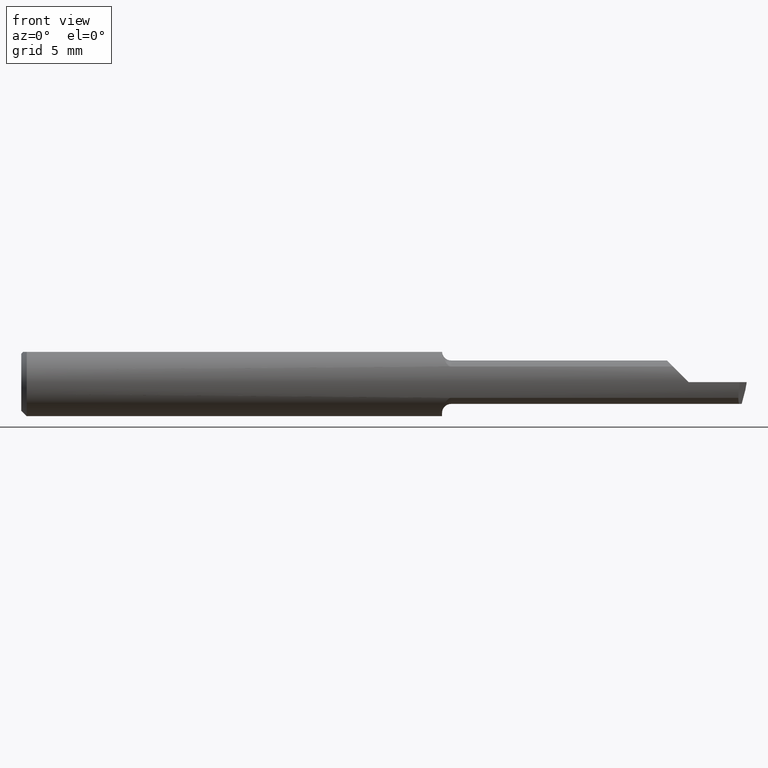
[diagram: clean part render]
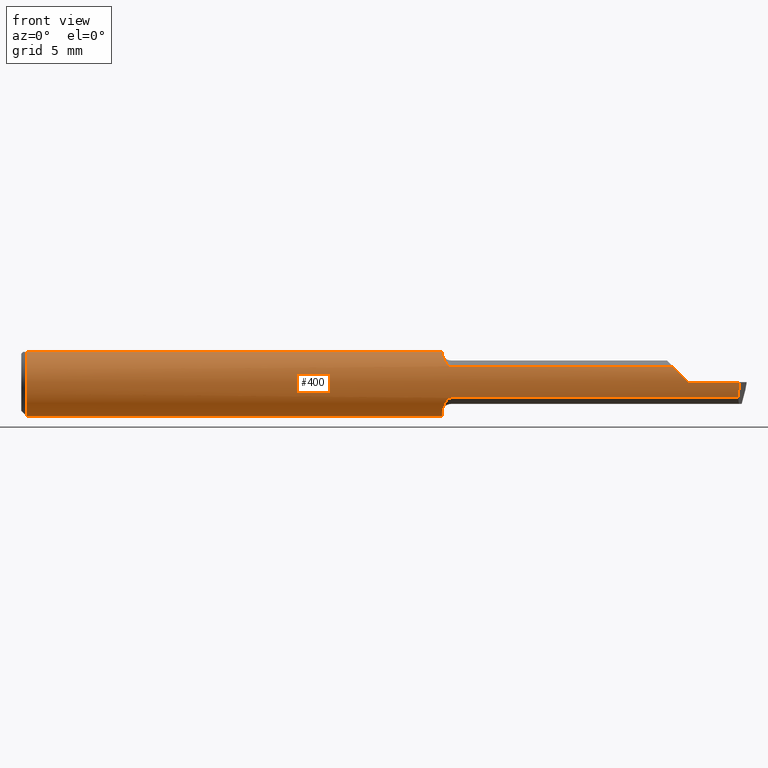
[diagram: same view with one face highlighted and labeled with its STEP entity id]
A machine part, front view. The second image highlights one B-rep face of the part: STEP entity #400.
In plain terms, the highlighted cylindrical surface (edge-blend (fillet) strip) has radius 2.3774 mm, axis along (-1, -0, -0).
Its self-contained STEP definition (entity closure, byte-faithful):
#1 = CARTESIAN_POINT ( 'NONE',  ( 1.520000000000000240, -0.08307469879518081246, 0.04312255117789283443 ) ) ;
#3 = VERTEX_POINT ( 'NONE', #586 ) ;
#5 = CARTESIAN_POINT ( 'NONE',  ( 1.840000000000000080, -0.09360000000000005815, 1.959434878635762025E-17 ) ) ;
#8 = CIRCLE ( 'NONE', #411, 0.09360000000000001652 ) ;
#10 = CIRCLE ( 'NONE', #177, 0.09360000000000001652 ) ;
#15 = CARTESIAN_POINT ( 'NONE',  ( 5.659797890829555466E-31, -0.09359999999999998876, 1.030335658007946046E-15 ) ) ;
#18 = CARTESIAN_POINT ( 'NONE',  ( 0.01499999999999999598, 0.04209513035969837669, 0.08360000000000000764 ) ) ;
#23 = AXIS2_PLACEMENT_3D ( 'NONE', #66, #492, #184 ) ;
#25 = DIRECTION ( 'NONE',  ( -1.000000000000000000, -0.000000000000000000, -0.000000000000000000 ) ) ;
#33 = CARTESIAN_POINT ( 'NONE',  ( 1.520000000000000240, -0.08307469879518081246, -0.04312255117789283443 ) ) ;
#39 = CARTESIAN_POINT ( 'NONE',  ( 1.976737781047570364, -0.08307469879518081246, -0.04312255117789283443 ) ) ;
#40 = DIRECTION ( 'NONE',  ( -1.000000000000000000, -0.000000000000000000, -0.000000000000000000 ) ) ;
#43 = CARTESIAN_POINT ( 'NONE',  ( 1.160000000000000142, -0.04014498638740782860, -0.08455714216888012003 ) ) ;
#45 = ORIENTED_EDGE ( 'NONE', *, *, #508, .F. ) ;
#49 = CARTESIAN_POINT ( 'NONE',  ( 1.175413575230843666, -0.08042664989327168168, 0.04791921015131045403 ) ) ;
#59 = ORIENTED_EDGE ( 'NONE', *, *, #63, .F. ) ;
#63 = EDGE_CURVE ( 'NONE', #535, #3, #353, .T. ) ;
#66 = CARTESIAN_POINT ( 'NONE',  ( 0.000000000000000000, 0.000000000000000000, 0.000000000000000000 ) ) ;
#70 = VERTEX_POINT ( 'NONE', #74 ) ;
#73 = EDGE_CURVE ( 'NONE', #421, #532, #521, .T. ) ;
#74 = CARTESIAN_POINT ( 'NONE',  ( 1.160033712670299977, -0.04209513036081732190, 0.08360000000000000764 ) ) ;
#76 = CYLINDRICAL_SURFACE ( 'NONE', #23, 0.09360000000000001652 ) ;
#88 = CARTESIAN_POINT ( 'NONE',  ( 1.167076397983111580, -0.07187891021191479546, -0.06019546731975692483 ) ) ;
#89 = CARTESIAN_POINT ( 'NONE',  ( 1.796877448822106649, -0.08307469879518082634, 0.04312255117789279973 ) ) ;
#91 = CARTESIAN_POINT ( 'NONE',  ( 1.182100790213033825, -0.08307469879518074307, -0.04312255117789293851 ) ) ;
#96 = EDGE_CURVE ( 'NONE', #132, #421, #356, .T. ) ;
#101 = CARTESIAN_POINT ( 'NONE',  ( 1.169277238843646760, -0.07518688180277835476, 0.05595855205935822835 ) ) ;
#102 = VERTEX_POINT ( 'NONE', #611 ) ;
#107 = EDGE_LOOP ( 'NONE', ( #59, #577, #166, #199, #671, #593, #255, #323, #368, #301, #580, #45, #570 ) ) ;
#113 = CARTESIAN_POINT ( 'NONE',  ( 1.160163936266329632, -0.04714148439379606259, 0.08105900800344767454 ) ) ;
#130 = B_SPLINE_CURVE_WITH_KNOTS ( 'NONE', 3,
 ( #360, #91, #154, #470, #461, #193, #88, #409, #666, #366, #669, #422 ),
 .UNSPECIFIED., .F., .F.,
 ( 4, 2, 2, 2, 2, 4 ),
 ( 1.963546462201886234E-07, 0.0002171101490734176048, 0.0004340239435006150535, 0.0008678515323550098966, 0.001301679121209404740, 0.001735506710063799583 ),
 .UNSPECIFIED. ) ;
#132 = VERTEX_POINT ( 'NONE', #601 ) ;
#136 =( BOUNDED_CURVE ( )  B_SPLINE_CURVE ( 3, ( #242, #591, #180, #547 ),
 .UNSPECIFIED., .F., .T. ) 
 B_SPLINE_CURVE_WITH_KNOTS ( ( 4, 4 ),
 ( 0.2441216721730426198, 0.7229178047250387484 ),
 .UNSPECIFIED. ) 
 CURVE ( )  GEOMETRIC_REPRESENTATION_ITEM ( )  RATIONAL_B_SPLINE_CURVE ( ( 1.000000000000000000, 0.9809872534005956712, 0.9809872534005956712, 1.000000000000000000 ) ) 
 REPRESENTATION_ITEM ( '' )  );
#137 = EDGE_CURVE ( 'NONE', #599, #437, #8, .T. ) ;
#150 = CARTESIAN_POINT ( 'NONE',  ( 0.01499999999999999598, 0.000000000000000000, 0.000000000000000000 ) ) ;
#153 = B_SPLINE_CURVE_WITH_KNOTS ( 'NONE', 3,
 ( #299, #305, #43, #252 ),
 .UNSPECIFIED., .F., .F.,
 ( 4, 4 ),
 ( 0.001735506710063799583, 0.001793010945052101509 ),
 .UNSPECIFIED. ) ;
#154 = CARTESIAN_POINT ( 'NONE',  ( 1.179498465877714120, -0.08233174416856384181, -0.04456779206614402966 ) ) ;
#166 = ORIENTED_EDGE ( 'NONE', *, *, #96, .T. ) ;
#177 = AXIS2_PLACEMENT_3D ( 'NONE', #335, #393, #648 ) ;
#180 = CARTESIAN_POINT ( 'NONE',  ( 1.978735214319866875, -0.09360000000000001652, -0.01508292493422504904 ) ) ;
#182 = EDGE_CURVE ( 'NONE', #70, #102, #417, .T. ) ;
#184 = DIRECTION ( 'NONE',  ( 0.000000000000000000, 0.000000000000000000, 1.000000000000000000 ) ) ;
#187 = LINE ( 'NONE', #292, #459 ) ;
#193 = CARTESIAN_POINT ( 'NONE',  ( 1.169237437666585722, -0.07513599091569005128, -0.05602756047418846336 ) ) ;
#199 = ORIENTED_EDGE ( 'NONE', *, *, #73, .T. ) ;
#207 = VERTEX_POINT ( 'NONE', #213 ) ;
#208 = CARTESIAN_POINT ( 'NONE',  ( 0.01499999999999999944, -0.04209513035969835587, 0.08360000000000000764 ) ) ;
#212 = VECTOR ( 'NONE', #533, 39.37007874015748143 ) ;
#213 = CARTESIAN_POINT ( 'NONE',  ( 1.160000000000000142, 0.04209513035969836975, 0.08360000000000000764 ) ) ;
#234 = EDGE_CURVE ( 'NONE', #371, #599, #662, .T. ) ;
#242 = CARTESIAN_POINT ( 'NONE',  ( 1.976737781047570364, -0.08307469879518081246, -0.04312255117789283443 ) ) ;
#248 = VECTOR ( 'NONE', #442, 39.37007874015748143 ) ;
#252 = CARTESIAN_POINT ( 'NONE',  ( 1.160000000000000142, -0.03946024096385560009, -0.08487549341873927566 ) ) ;
#255 = ORIENTED_EDGE ( 'NONE', *, *, #645, .T. ) ;
#257 = EDGE_CURVE ( 'NONE', #102, #532, #490, .T. ) ;
#284 = EDGE_CURVE ( 'NONE', #535, #132, #136, .T. ) ;
#292 = CARTESIAN_POINT ( 'NONE',  ( 0.000000000000000000, 0.04209513035969837669, 0.08360000000000000764 ) ) ;
#299 = CARTESIAN_POINT ( 'NONE',  ( 1.160020127471513174, -0.04150000000000000216, -0.08389702020930184245 ) ) ;
#301 = ORIENTED_EDGE ( 'NONE', *, *, #327, .T. ) ;
#305 = CARTESIAN_POINT ( 'NONE',  ( 1.160006719116742913, -0.04082489400077272262, -0.08423096411932438909 ) ) ;
#323 = ORIENTED_EDGE ( 'NONE', *, *, #137, .F. ) ;
#327 = EDGE_CURVE ( 'NONE', #371, #207, #187, .T. ) ;
#330 = VECTOR ( 'NONE', #560, 39.37007874015748143 ) ;
#331 = DIRECTION ( 'NONE',  ( -1.000000000000000000, -0.000000000000000000, -0.000000000000000000 ) ) ;
#335 = CARTESIAN_POINT ( 'NONE',  ( 1.160000000000000142, 0.000000000000000000, 0.000000000000000000 ) ) ;
#342 = VECTOR ( 'NONE', #25, 39.37007874015748143 ) ;
#353 = LINE ( 'NONE', #33, #342 ) ;
#356 = LINE ( 'NONE', #15, #330 ) ;
#359 = EDGE_CURVE ( 'NONE', #374, #207, #10, .T. ) ;
#360 = CARTESIAN_POINT ( 'NONE',  ( 1.185000000000000053, -0.08307469879518070144, -0.04312255117789289688 ) ) ;
#366 = CARTESIAN_POINT ( 'NONE',  ( 1.160604804002113077, -0.05145819953596708629, -0.07838465384289883264 ) ) ;
#368 = ORIENTED_EDGE ( 'NONE', *, *, #234, .F. ) ;
#370 = DIRECTION ( 'NONE',  ( 0.000000000000000000, 0.000000000000000000, 1.000000000000000000 ) ) ;
#371 = VERTEX_POINT ( 'NONE', #18 ) ;
#374 = VERTEX_POINT ( 'NONE', #495 ) ;
#375 = CARTESIAN_POINT ( 'NONE',  ( 0.01499999999999999598, 0.000000000000000000, -0.09360000000000001652 ) ) ;
#376 = AXIS2_PLACEMENT_3D ( 'NONE', #150, #331, #528 ) ;
#379 = CARTESIAN_POINT ( 'NONE',  ( 0.000000000000000000, -0.04209513035969835587, 0.08360000000000000764 ) ) ;
#386 = CARTESIAN_POINT ( 'NONE',  ( 1.160033712670299977, -0.04209513036081732190, 0.08360000000000000764 ) ) ;
#393 = DIRECTION ( 'NONE',  ( 1.000000000000000000, 0.000000000000000000, 0.000000000000000000 ) ) ;
#394 = VERTEX_POINT ( 'NONE', #507 ) ;
#400 = ADVANCED_FACE ( 'NONE', ( #544 ), #76, .T. ) ;
#409 = CARTESIAN_POINT ( 'NONE',  ( 1.163605992736884476, -0.06448586599545322318, -0.06805619079784644421 ) ) ;
#411 = AXIS2_PLACEMENT_3D ( 'NONE', #572, #40, #370 ) ;
#417 = B_SPLINE_CURVE_WITH_KNOTS ( 'NONE', 3,
 ( #386, #113, #677, #515, #424, #487, #101, #687, #49, #569, #428, #621 ),
 .UNSPECIFIED., .F., .F.,
 ( 4, 2, 2, 2, 2, 4 ),
 ( 4.385794399157352903E-07, 0.0004249653867977901621, 0.0008494921941556646131, 0.001274019001513539010, 0.001486282405192478756, 0.001698545808871418502 ),
 .UNSPECIFIED. ) ;
#418 = CARTESIAN_POINT ( 'NONE',  ( 1.840000000000000080, -0.09360000000000005815, 1.959434878635762025E-17 ) ) ;
#421 = VERTEX_POINT ( 'NONE', #5 ) ;
#422 = CARTESIAN_POINT ( 'NONE',  ( 1.160020127471513174, -0.04150000000000000216, -0.08389702020930184245 ) ) ;
#424 = CARTESIAN_POINT ( 'NONE',  ( 1.163721006865968688, -0.06478644025721981559, 0.06776242552087052839 ) ) ;
#427 = LINE ( 'NONE', #379, #212 ) ;
#428 = CARTESIAN_POINT ( 'NONE',  ( 1.182123707331576901, -0.08307469879541805324, 0.04312255117743588051 ) ) ;
#437 = VERTEX_POINT ( 'NONE', #208 ) ;
#442 = DIRECTION ( 'NONE',  ( 1.000000000000000000, 0.000000000000000000, 0.000000000000000000 ) ) ;
#450 = EDGE_CURVE ( 'NONE', #3, #394, #130, .T. ) ;
#459 = VECTOR ( 'NONE', #555, 39.37007874015748143 ) ;
#461 = CARTESIAN_POINT ( 'NONE',  ( 1.173672693420809487, -0.07917899622880043842, -0.04997532113045963925 ) ) ;
#470 = CARTESIAN_POINT ( 'NONE',  ( 1.175354605856553825, -0.08039319987159056213, -0.04797642756495511945 ) ) ;
#487 = CARTESIAN_POINT ( 'NONE',  ( 1.167169981118042932, -0.07201923175909119568, 0.06001882546754930964 ) ) ;
#490 = LINE ( 'NONE', #1, #248 ) ;
#492 = DIRECTION ( 'NONE',  ( -1.000000000000000000, -0.000000000000000000, -0.000000000000000000 ) ) ;
#495 = CARTESIAN_POINT ( 'NONE',  ( 1.160000000000000142, -0.03946024096385560009, -0.08487549341873927566 ) ) ;
#505 = CARTESIAN_POINT ( 'NONE',  ( 1.824917075065774830, -0.09360000000000001652, 0.01508292493422499526 ) ) ;
#507 = CARTESIAN_POINT ( 'NONE',  ( 1.160020127471513174, -0.04150000000000000216, -0.08389702020930184245 ) ) ;
#508 = EDGE_CURVE ( 'NONE', #394, #374, #153, .T. ) ;
#515 = CARTESIAN_POINT ( 'NONE',  ( 1.162429122971394557, -0.06066239981301110168, 0.07149394324226560071 ) ) ;
#519 = CARTESIAN_POINT ( 'NONE',  ( 1.796877448822106649, -0.08307469879518082634, 0.04312255117789279973 ) ) ;
#521 =( BOUNDED_CURVE ( )  B_SPLINE_CURVE ( 3, ( #418, #505, #562, #89 ),
 .UNSPECIFIED., .F., .T. ) 
 B_SPLINE_CURVE_WITH_KNOTS ( ( 4, 4 ),
 ( 4.712388980384689674, 5.191185112936686608 ),
 .UNSPECIFIED. ) 
 CURVE ( )  GEOMETRIC_REPRESENTATION_ITEM ( )  RATIONAL_B_SPLINE_CURVE ( ( 1.000000000000000000, 0.9809872534005956712, 0.9809872534005956712, 1.000000000000000000 ) ) 
 REPRESENTATION_ITEM ( '' )  );
#528 = DIRECTION ( 'NONE',  ( 0.000000000000000000, 0.000000000000000000, 1.000000000000000000 ) ) ;
#532 = VERTEX_POINT ( 'NONE', #519 ) ;
#533 = DIRECTION ( 'NONE',  ( -1.000000000000000000, -0.000000000000000000, -0.000000000000000000 ) ) ;
#535 = VERTEX_POINT ( 'NONE', #39 ) ;
#544 = FACE_OUTER_BOUND ( 'NONE', #107, .T. ) ;
#547 = CARTESIAN_POINT ( 'NONE',  ( 1.980605364811071301, -0.09360000000000009979, -5.798824549005809640E-17 ) ) ;
#555 = DIRECTION ( 'NONE',  ( 1.000000000000000000, 0.000000000000000000, 0.000000000000000000 ) ) ;
#560 = DIRECTION ( 'NONE',  ( -1.000000000000000000, -0.000000000000000000, -0.000000000000000000 ) ) ;
#562 = CARTESIAN_POINT ( 'NONE',  ( 1.810264301876177928, -0.09002356847881790025, 0.02973569812382162794 ) ) ;
#569 = CARTESIAN_POINT ( 'NONE',  ( 1.179521451227074413, -0.08233651528524262020, 0.04455777109846686956 ) ) ;
#570 = ORIENTED_EDGE ( 'NONE', *, *, #450, .F. ) ;
#572 = CARTESIAN_POINT ( 'NONE',  ( 0.01499999999999999598, 0.000000000000000000, 0.000000000000000000 ) ) ;
#577 = ORIENTED_EDGE ( 'NONE', *, *, #284, .T. ) ;
#580 = ORIENTED_EDGE ( 'NONE', *, *, #359, .F. ) ;
#586 = CARTESIAN_POINT ( 'NONE',  ( 1.185000000000000053, -0.08307469879518070144, -0.04312255117789289688 ) ) ;
#591 = CARTESIAN_POINT ( 'NONE',  ( 1.977421033545993856, -0.09002356847881790025, -0.02973569812382164529 ) ) ;
#593 = ORIENTED_EDGE ( 'NONE', *, *, #182, .F. ) ;
#599 = VERTEX_POINT ( 'NONE', #375 ) ;
#601 = CARTESIAN_POINT ( 'NONE',  ( 1.980605364811071301, -0.09360000000000009979, -5.798824549005809640E-17 ) ) ;
#611 = CARTESIAN_POINT ( 'NONE',  ( 1.185000000000000053, -0.08307469879518036837, 0.04312255117789319525 ) ) ;
#621 = CARTESIAN_POINT ( 'NONE',  ( 1.185000000000000053, -0.08307469879518036837, 0.04312255117789319525 ) ) ;
#645 = EDGE_CURVE ( 'NONE', #70, #437, #427, .T. ) ;
#648 = DIRECTION ( 'NONE',  ( 0.000000000000000000, 0.000000000000000000, -1.000000000000000000 ) ) ;
#662 = CIRCLE ( 'NONE', #376, 0.09360000000000001652 ) ;
#666 = CARTESIAN_POINT ( 'NONE',  ( 1.162355770679724287, -0.06040702343486030468, -0.07171535245186147489 ) ) ;
#669 = CARTESIAN_POINT ( 'NONE',  ( 1.160121283746728515, -0.04659318327468391085, -0.08137765652544186323 ) ) ;
#671 = ORIENTED_EDGE ( 'NONE', *, *, #257, .F. ) ;
#677 = CARTESIAN_POINT ( 'NONE',  ( 1.160661035553280040, -0.05185656404764086430, 0.07811662714540883179 ) ) ;
#687 = CARTESIAN_POINT ( 'NONE',  ( 1.173723886093771984, -0.07921817987516428794, 0.04991299092638442486 ) ) ;